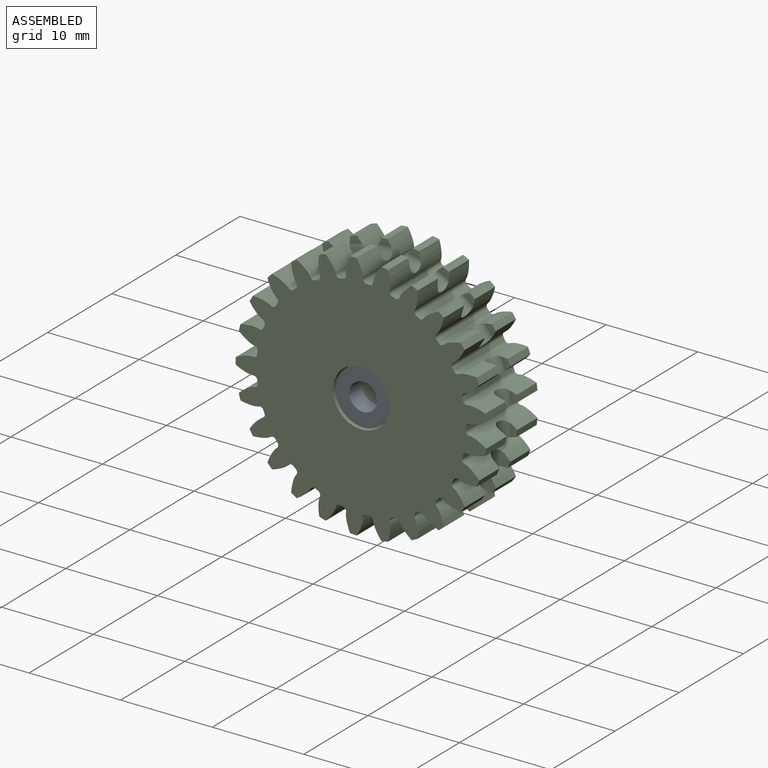
[diagram: assembled view]
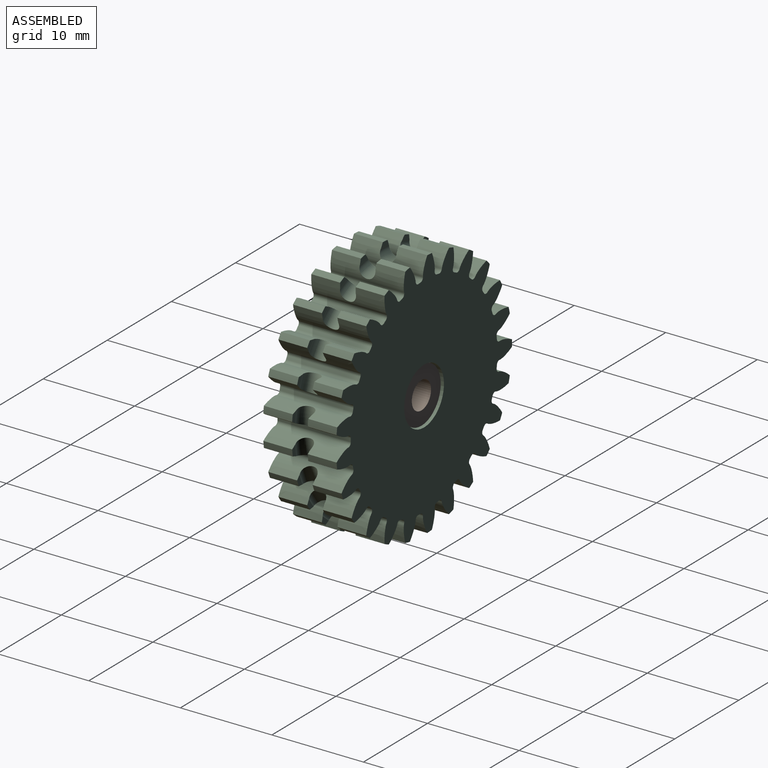
[diagram: assembled view, second angle]
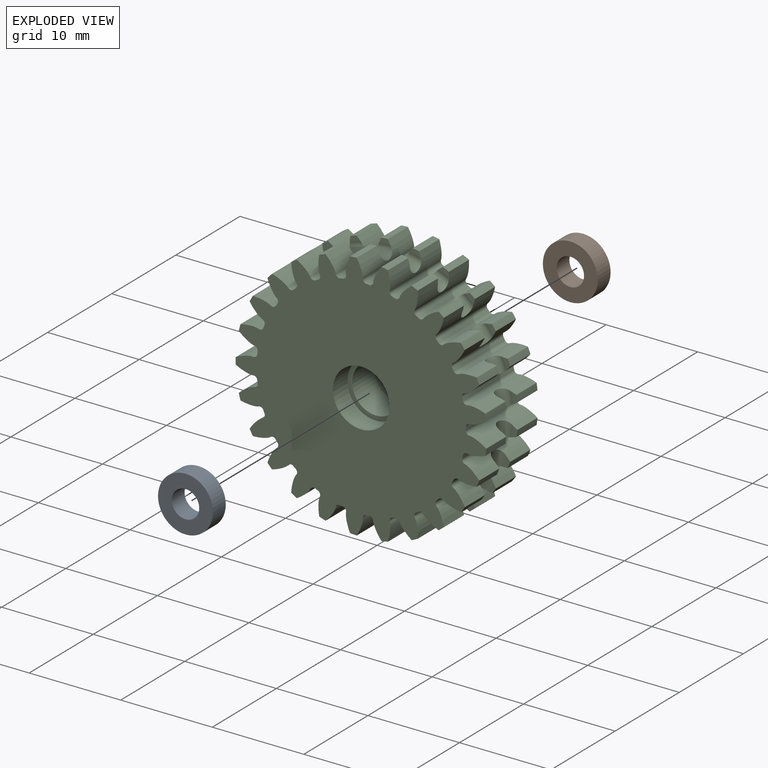
[diagram: exploded view]
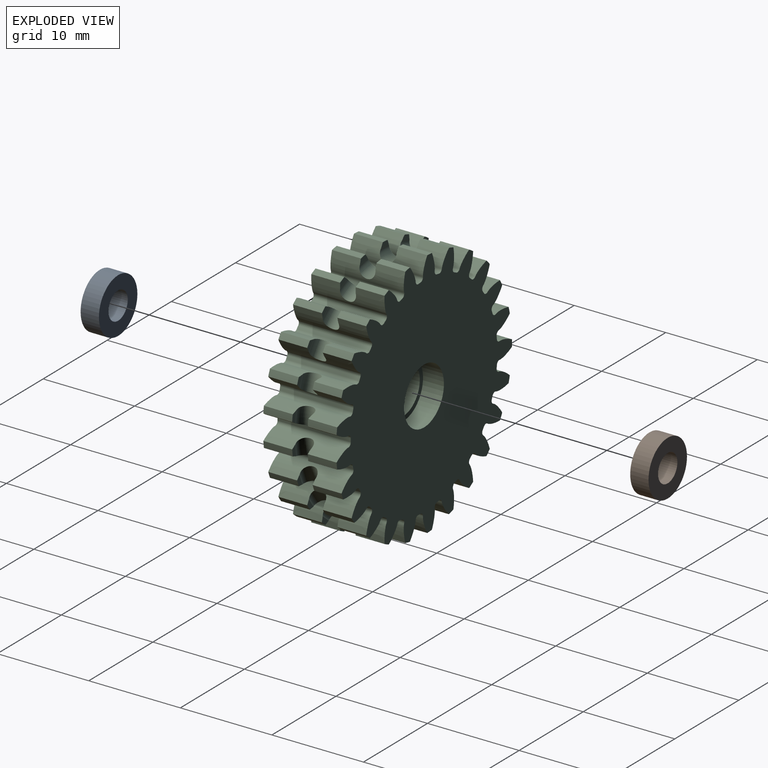
[diagram: exploded view, second angle]
ASSEMBLY  parts=3 mates=2
PART A: 4 faces, bbox 6x2x6 mm
  f0: cylinder r=1.5mm len=3mm, axis (0,1,0), area 18.8mm2, adj f2,f3
  f1: cylinder r=3mm len=6mm, axis (0,1,0), area 37.7mm2, adj f2,f3
  f2: plane 6x6mm, normal (0,-1,0), area 21.2mm2, adj f0,f1
  f3: plane 6x6mm, normal (0,1,0), area 21.2mm2, adj f0,f1
PART B: same geometry as A
PART C: 257 faces, bbox 27.4x8x27.4 mm
  f0: cylinder r=2.6mm len=5.2mm, axis (0,1,0), area 56mm2, adj f254,f256
  f1: cylinder r=13.72mm len=3.15mm, axis (0,1,0), area 2.3mm2, adj f95,f100,f101,f180
  f2: cylinder r=13.72mm len=3.15mm, axis (0,1,0), area 2.3mm2, adj f95,f100,f102,f178
  f3: cylinder r=13.72mm len=3.15mm, axis (0,1,0), area 2.3mm2, adj f98,f99,f101,f183
  f4: cylinder r=13.72mm len=3.15mm, axis (0,1,0), area 2.3mm2, adj f98,f99,f102,f181
  f5: cylinder r=13.72mm len=3.15mm, axis (0,1,0), area 2.3mm2, adj f93,f96,f101,f189
  f6: cylinder r=13.72mm len=3.15mm, axis (0,1,0), area 2.3mm2, adj f93,f96,f102,f187
  f7: cylinder r=13.72mm len=3.15mm, axis (0,1,0), area 2.3mm2, adj f91,f94,f101,f192
  f8: cylinder r=13.72mm len=3.15mm, axis (0,1,0), area 2.3mm2, adj f91,f94,f102,f190
  f9: cylinder r=13.72mm len=3.15mm, axis (0,1,0), area 2.3mm2, adj f89,f92,f101,f195
  f10: cylinder r=13.72mm len=3.15mm, axis (0,1,0), area 2.3mm2, adj f89,f92,f102,f193
  f11: cylinder r=13.72mm len=3.15mm, axis (0,1,0), area 2.3mm2, adj f85,f90,f101,f198
  f12: cylinder r=13.72mm len=3.15mm, axis (0,1,0), area 2.3mm2, adj f85,f90,f102,f196
  f13: cylinder r=13.72mm len=3.15mm, axis (0,1,0), area 2.3mm2, adj f83,f88,f101,f201
  f14: cylinder r=13.72mm len=3.15mm, axis (0,1,0), area 2.3mm2, adj f83,f88,f102,f199
  f15: cylinder r=13.72mm len=3.15mm, axis (0,1,0), area 2.3mm2, adj f86,f87,f101,f204
  f16: cylinder r=13.72mm len=3.15mm, axis (0,1,0), area 2.3mm2, adj f86,f87,f102,f202
  f17: cylinder r=13.72mm len=3.15mm, axis (0,1,0), area 2.3mm2, adj f81,f84,f101,f207
  f18: cylinder r=13.72mm len=3.15mm, axis (0,1,0), area 2.3mm2, adj f81,f84,f102,f205
  f19: cylinder r=13.72mm len=3.15mm, axis (0,1,0), area 2.3mm2, adj f79,f82,f101,f210
  f20: cylinder r=13.72mm len=3.15mm, axis (0,1,0), area 2.3mm2, adj f79,f82,f102,f208
  f21: cylinder r=13.72mm len=3.15mm, axis (0,1,0), area 2.3mm2, adj f77,f80,f101,f213
  f22: cylinder r=13.72mm len=3.15mm, axis (0,1,0), area 2.3mm2, adj f77,f80,f102,f211
  f23: cylinder r=13.72mm len=3.15mm, axis (0,1,0), area 2.3mm2, adj f71,f78,f101,f216
  f24: cylinder r=13.72mm len=3.15mm, axis (0,1,0), area 2.3mm2, adj f71,f78,f102,f214
  f25: cylinder r=13.72mm len=3.15mm, axis (0,1,0), area 2.3mm2, adj f51,f76,f101,f219
  f26: cylinder r=13.72mm len=3.15mm, axis (0,1,0), area 2.3mm2, adj f51,f76,f102,f217
  f27: cylinder r=13.72mm len=3.15mm, axis (0,1,0), area 2.3mm2, adj f74,f75,f101,f222
  f28: cylinder r=13.72mm len=3.15mm, axis (0,1,0), area 2.3mm2, adj f74,f75,f102,f220
  f29: cylinder r=13.72mm len=3.15mm, axis (0,1,0), area 2.3mm2, adj f69,f72,f101,f228
  f30: cylinder r=13.72mm len=3.15mm, axis (0,1,0), area 2.3mm2, adj f69,f72,f102,f226
  f31: cylinder r=13.72mm len=3.15mm, axis (0,1,0), area 2.3mm2, adj f70,f73,f101,f225
  f32: cylinder r=13.72mm len=3.15mm, axis (0,1,0), area 2.3mm2, adj f70,f73,f102,f223
  f33: cylinder r=13.72mm len=3.15mm, axis (0,1,0), area 2.3mm2, adj f68,f97,f101,f186
  f34: cylinder r=13.72mm len=3.15mm, axis (0,1,0), area 2.3mm2, adj f68,f97,f102,f184
  f35: cylinder r=13.72mm len=3.15mm, axis (0,1,0), area 2.3mm2, adj f66,f67,f101,f231
  f36: cylinder r=13.72mm len=3.15mm, axis (0,1,0), area 2.3mm2, adj f66,f67,f102,f229
  f37: cylinder r=13.72mm len=3.15mm, axis (0,1,0), area 2.3mm2, adj f64,f65,f101,f234
  f38: cylinder r=13.72mm len=3.15mm, axis (0,1,0), area 2.3mm2, adj f64,f65,f102,f232
  f39: cylinder r=13.72mm len=3.15mm, axis (0,1,0), area 2.3mm2, adj f62,f63,f101,f237
  f40: cylinder r=13.72mm len=3.15mm, axis (0,1,0), area 2.3mm2, adj f62,f63,f102,f235
  f41: cylinder r=13.72mm len=3.15mm, axis (0,1,0), area 2.3mm2, adj f57,f60,f101,f243
  f42: cylinder r=13.72mm len=3.15mm, axis (0,1,0), area 2.3mm2, adj f57,f60,f102,f241
  f43: cylinder r=13.72mm len=3.15mm, axis (0,1,0), area 2.3mm2, adj f53,f58,f101,f249
  f44: cylinder r=13.72mm len=3.15mm, axis (0,1,0), area 2.3mm2, adj f53,f58,f102,f247
  f45: cylinder r=13.72mm len=3.15mm, axis (0,1,0), area 2.3mm2, adj f56,f61,f101,f240
  f46: cylinder r=13.72mm len=3.15mm, axis (0,1,0), area 2.3mm2, adj f56,f61,f102,f238
  f47: cylinder r=13.72mm len=3.15mm, axis (0,1,0), area 2.3mm2, adj f54,f55,f101,f250
  f48: cylinder r=13.72mm len=3.15mm, axis (0,1,0), area 2.3mm2, adj f54,f55,f102,f252
  f49: cylinder r=13.72mm len=3.15mm, axis (0,1,0), area 2.3mm2, adj f52,f59,f101,f246
  f50: cylinder r=13.72mm len=3.15mm, axis (0,1,0), area 2.3mm2, adj f52,f59,f102,f244
  f51: extruded ~8x1.85mm, area 13.7mm2, adj f25,f26,f101,f102,f104,f217,f218,f219
  f52: extruded ~8x1.85mm, area 13.7mm2, adj f49,f50,f101,f102,f105,f244,f245,f246
  f53: extruded ~8x1.89mm, area 13.7mm2, adj f43,f44,f101,f102,f107,f247,f248,f249
  f54: extruded ~8x1.85mm, area 13.7mm2, adj f47,f48,f101,f102,f108,f250,f251,f252
  f55: extruded ~8x1.66mm, area 13.7mm2, adj f47,f48,f101,f102,f110,f250,f251,f252
  f56: extruded ~8x1.99mm, area 13.7mm2, adj f45,f46,f101,f102,f111,f238,f239,f240
  f57: extruded ~8x2.01mm, area 13.7mm2, adj f41,f42,f101,f102,f113,f241,f242,f243
  f58: extruded ~8x1.59mm, area 13.7mm2, adj f43,f44,f101,f102,f114,f247,f248,f249
  f59: extruded ~8x1.99mm, area 13.7mm2, adj f49,f50,f101,f102,f116,f244,f245,f246
  f60: extruded ~8x1.6mm, area 13.7mm2, adj f41,f42,f101,f102,f117,f241,f242,f243
  f61: extruded ~8x1.52mm, area 13.7mm2, adj f45,f46,f101,f102,f119,f238,f239,f240
  f62: extruded ~8x2.01mm, area 13.7mm2, adj f39,f40,f101,f102,f120,f235,f236,f237
  f63: extruded ~8x1.8mm, area 13.7mm2, adj f39,f40,f101,f102,f122,f235,f236,f237
  f64: extruded ~8x1.9mm, area 13.7mm2, adj f37,f38,f101,f102,f123,f232,f233,f234
  f65: extruded ~8x1.97mm, area 13.7mm2, adj f37,f38,f101,f102,f125,f232,f233,f234
  f66: extruded ~8x1.67mm, area 13.7mm2, adj f35,f36,f101,f102,f126,f229,f230,f231
  f67: extruded ~8x2.02mm, area 13.7mm2, adj f35,f36,f101,f102,f128,f229,f230,f231
  f68: extruded ~8x1.51mm, area 13.7mm2, adj f33,f34,f101,f102,f129,f184,f185,f186
  f69: extruded ~8x1.85mm, area 13.7mm2, adj f29,f30,f101,f102,f131,f226,f227,f228
  f70: extruded ~8x1.89mm, area 13.7mm2, adj f31,f32,f101,f102,f132,f223,f224,f225
  f71: extruded ~8x1.99mm, area 13.7mm2, adj f23,f24,f101,f102,f134,f214,f215,f216
  f72: extruded ~8x1.66mm, area 13.7mm2, adj f29,f30,f101,f102,f135,f226,f227,f228
  f73: extruded ~8x1.59mm, area 13.7mm2, adj f31,f32,f101,f102,f137,f223,f224,f225
  f74: extruded ~8x2.01mm, area 13.7mm2, adj f27,f28,f101,f102,f138,f220,f221,f222
  f75: extruded ~8x1.6mm, area 13.7mm2, adj f27,f28,f101,f102,f140,f220,f221,f222
  f76: extruded ~8x1.99mm, area 13.7mm2, adj f25,f26,f101,f102,f141,f217,f218,f219
  f77: extruded ~8x2.01mm, area 13.7mm2, adj f21,f22,f101,f102,f143,f211,f212,f213
  f78: extruded ~8x1.52mm, area 13.7mm2, adj f23,f24,f101,f102,f144,f214,f215,f216
  f79: extruded ~8x1.9mm, area 13.7mm2, adj f19,f20,f101,f102,f146,f208,f209,f210
  f80: extruded ~8x1.8mm, area 13.7mm2, adj f21,f22,f101,f102,f147,f211,f212,f213
  f81: extruded ~8x1.67mm, area 13.7mm2, adj f17,f18,f101,f102,f149,f205,f206,f207
  f82: extruded ~8x1.97mm, area 13.7mm2, adj f19,f20,f101,f102,f150,f208,f209,f210
  f83: extruded ~8x1.51mm, area 13.7mm2, adj f13,f14,f101,f102,f152,f199,f200,f201
  f84: extruded ~8x2.02mm, area 13.7mm2, adj f17,f18,f101,f102,f153,f205,f206,f207
  f85: extruded ~8x1.97mm, area 13.7mm2, adj f11,f12,f101,f102,f155,f196,f197,f198
  f86: extruded ~8x1.73mm, area 13.7mm2, adj f15,f16,f101,f102,f156,f202,f203,f204
  f87: extruded ~8x1.79mm, area 13.7mm2, adj f15,f16,f101,f102,f158,f202,f203,f204
  f88: extruded ~8x1.93mm, area 13.7mm2, adj f13,f14,f101,f102,f159,f199,f200,f201
  f89: extruded ~8x2.02mm, area 13.7mm2, adj f9,f10,f101,f102,f161,f193,f194,f195
  f90: extruded ~8x1.43mm, area 13.7mm2, adj f11,f12,f101,f102,f162,f196,f197,f198
  f91: extruded ~8x1.94mm, area 13.7mm2, adj f7,f8,f101,f102,f164,f190,f191,f192
  f92: extruded ~8x1.74mm, area 13.7mm2, adj f9,f10,f101,f102,f165,f193,f194,f195
  f93: extruded ~8x1.74mm, area 13.7mm2, adj f5,f6,f101,f102,f167,f187,f188,f189
  f94: extruded ~8x1.94mm, area 13.7mm2, adj f7,f8,f101,f102,f168,f190,f191,f192
  f95: extruded ~8x1.43mm, area 13.7mm2, adj f1,f2,f101,f102,f170,f178,f179,f180
  f96: extruded ~8x2.02mm, area 13.7mm2, adj f5,f6,f101,f102,f171,f187,f188,f189
  f97: extruded ~8x1.93mm, area 13.7mm2, adj f33,f34,f101,f102,f173,f184,f185,f186
  f98: extruded ~8x1.79mm, area 13.7mm2, adj f3,f4,f101,f102,f174,f181,f182,f183
  f99: extruded ~8x1.73mm, area 13.7mm2, adj f3,f4,f101,f102,f176,f181,f182,f183
  f100: extruded ~8x1.97mm, area 13.7mm2, adj f1,f2,f101,f102,f177,f178,f179,f180
  f101: plane 27.42x27.37mm, normal (0,-1,0), area 469mm2, adj f1,f3,f5,f7,f9,f11,f13,f15
  f102: plane 27.42x27.37mm, normal (0,1,0), area 469mm2, adj f2,f4,f6,f8,f10,f12,f14,f16
  f103: cylinder r=11.43mm len=8mm, axis (0,1,0), area 2.8mm2, adj f101,f102,f104,f105
  f104: cylinder r=0.38mm len=8mm, axis (0,1,0), area 4.7mm2, adj f51,f101,f102,f103
  f105: cylinder r=0.38mm len=8mm, axis (0,1,0), area 4.7mm2, adj f52,f101,f102,f103
  f106: cylinder r=11.43mm len=8mm, axis (0,1,0), area 2.8mm2, adj f101,f102,f107,f108
  f107: cylinder r=0.38mm len=8mm, axis (0,1,0), area 4.7mm2, adj f53,f101,f102,f106
  f108: cylinder r=0.38mm len=8mm, axis (0,1,0), area 4.7mm2, adj f54,f101,f102,f106
  f109: cylinder r=11.43mm len=8mm, axis (0,1,0), area 2.8mm2, adj f101,f102,f110,f111
  f110: cylinder r=0.38mm len=8mm, axis (0,1,0), area 4.7mm2, adj f55,f101,f102,f109
  f111: cylinder r=0.38mm len=8mm, axis (0,1,0), area 4.7mm2, adj f56,f101,f102,f109
  f112: cylinder r=11.43mm len=8mm, axis (0,1,0), area 2.8mm2, adj f101,f102,f113,f114
  f113: cylinder r=0.38mm len=8mm, axis (0,1,0), area 4.7mm2, adj f57,f101,f102,f112
  f114: cylinder r=0.38mm len=8mm, axis (0,1,0), area 4.7mm2, adj f58,f101,f102,f112
  f115: cylinder r=11.43mm len=8mm, axis (0,1,0), area 2.8mm2, adj f101,f102,f116,f117
  f116: cylinder r=0.38mm len=8mm, axis (0,1,0), area 4.7mm2, adj f59,f101,f102,f115
  f117: cylinder r=0.38mm len=8mm, axis (0,1,0), area 4.7mm2, adj f60,f101,f102,f115
  f118: cylinder r=11.43mm len=8mm, axis (0,1,0), area 2.8mm2, adj f101,f102,f119,f120
  f119: cylinder r=0.38mm len=8mm, axis (0,1,0), area 4.7mm2, adj f61,f101,f102,f118
  f120: cylinder r=0.38mm len=8mm, axis (0,1,0), area 4.7mm2, adj f62,f101,f102,f118
  f121: cylinder r=11.43mm len=8mm, axis (0,1,0), area 2.8mm2, adj f101,f102,f122,f123
  f122: cylinder r=0.38mm len=8mm, axis (0,1,0), area 4.7mm2, adj f63,f101,f102,f121
  f123: cylinder r=0.38mm len=8mm, axis (0,1,0), area 4.7mm2, adj f64,f101,f102,f121
  f124: cylinder r=11.43mm len=8mm, axis (0,1,0), area 2.8mm2, adj f101,f102,f125,f126
  f125: cylinder r=0.38mm len=8mm, axis (0,1,0), area 4.7mm2, adj f65,f101,f102,f124
  f126: cylinder r=0.38mm len=8mm, axis (0,1,0), area 4.7mm2, adj f66,f101,f102,f124
  f127: cylinder r=11.43mm len=8mm, axis (0,1,0), area 2.8mm2, adj f101,f102,f128,f129
  f128: cylinder r=0.38mm len=8mm, axis (0,1,0), area 4.7mm2, adj f67,f101,f102,f127
  f129: cylinder r=0.38mm len=8mm, axis (0,1,0), area 4.7mm2, adj f68,f101,f102,f127
  f130: cylinder r=11.43mm len=8mm, axis (0,1,0), area 2.8mm2, adj f101,f102,f131,f132
  f131: cylinder r=0.38mm len=8mm, axis (0,1,0), area 4.7mm2, adj f69,f101,f102,f130
  f132: cylinder r=0.38mm len=8mm, axis (0,1,0), area 4.7mm2, adj f70,f101,f102,f130
  f133: cylinder r=11.43mm len=8mm, axis (0,1,0), area 2.8mm2, adj f101,f102,f134,f135
  f134: cylinder r=0.38mm len=8mm, axis (0,1,0), area 4.7mm2, adj f71,f101,f102,f133
  f135: cylinder r=0.38mm len=8mm, axis (0,1,0), area 4.7mm2, adj f72,f101,f102,f133
  f136: cylinder r=11.43mm len=8mm, axis (0,1,0), area 2.8mm2, adj f101,f102,f137,f138
  f137: cylinder r=0.38mm len=8mm, axis (0,1,0), area 4.7mm2, adj f73,f101,f102,f136
  f138: cylinder r=0.38mm len=8mm, axis (0,1,0), area 4.7mm2, adj f74,f101,f102,f136
  f139: cylinder r=11.43mm len=8mm, axis (0,1,0), area 2.8mm2, adj f101,f102,f140,f141
  f140: cylinder r=0.38mm len=8mm, axis (0,1,0), area 4.7mm2, adj f75,f101,f102,f139
  f141: cylinder r=0.38mm len=8mm, axis (0,1,0), area 4.7mm2, adj f76,f101,f102,f139
  f142: cylinder r=11.43mm len=8mm, axis (0,1,0), area 2.8mm2, adj f101,f102,f143,f144
  f143: cylinder r=0.38mm len=8mm, axis (0,1,0), area 4.7mm2, adj f77,f101,f102,f142
  f144: cylinder r=0.38mm len=8mm, axis (0,1,0), area 4.7mm2, adj f78,f101,f102,f142
  f145: cylinder r=11.43mm len=8mm, axis (0,1,0), area 2.8mm2, adj f101,f102,f146,f147
  f146: cylinder r=0.38mm len=8mm, axis (0,1,0), area 4.7mm2, adj f79,f101,f102,f145
  f147: cylinder r=0.38mm len=8mm, axis (0,1,0), area 4.7mm2, adj f80,f101,f102,f145
  f148: cylinder r=11.43mm len=8mm, axis (0,1,0), area 2.8mm2, adj f101,f102,f149,f150
  f149: cylinder r=0.38mm len=8mm, axis (0,1,0), area 4.7mm2, adj f81,f101,f102,f148
  f150: cylinder r=0.38mm len=8mm, axis (0,1,0), area 4.7mm2, adj f82,f101,f102,f148
  f151: cylinder r=11.43mm len=8mm, axis (0,1,0), area 2.8mm2, adj f101,f102,f152,f153
  f152: cylinder r=0.38mm len=8mm, axis (0,1,0), area 4.7mm2, adj f83,f101,f102,f151
  f153: cylinder r=0.38mm len=8mm, axis (0,1,0), area 4.7mm2, adj f84,f101,f102,f151
  f154: cylinder r=11.43mm len=8mm, axis (0,1,0), area 2.8mm2, adj f101,f102,f155,f156
  f155: cylinder r=0.38mm len=8mm, axis (0,1,0), area 4.7mm2, adj f85,f101,f102,f154
  f156: cylinder r=0.38mm len=8mm, axis (0,1,0), area 4.7mm2, adj f86,f101,f102,f154
  f157: cylinder r=11.43mm len=8mm, axis (0,1,0), area 2.8mm2, adj f101,f102,f158,f159
  f158: cylinder r=0.38mm len=8mm, axis (0,1,0), area 4.7mm2, adj f87,f101,f102,f157
  f159: cylinder r=0.38mm len=8mm, axis (0,1,0), area 4.7mm2, adj f88,f101,f102,f157
  f160: cylinder r=11.43mm len=8mm, axis (0,1,0), area 2.8mm2, adj f101,f102,f161,f162
  f161: cylinder r=0.38mm len=8mm, axis (0,1,0), area 4.7mm2, adj f89,f101,f102,f160
  f162: cylinder r=0.38mm len=8mm, axis (0,1,0), area 4.7mm2, adj f90,f101,f102,f160
  f163: cylinder r=11.43mm len=8mm, axis (0,1,0), area 2.8mm2, adj f101,f102,f164,f165
  f164: cylinder r=0.38mm len=8mm, axis (0,1,0), area 4.7mm2, adj f91,f101,f102,f163
  f165: cylinder r=0.38mm len=8mm, axis (0,1,0), area 4.7mm2, adj f92,f101,f102,f163
  f166: cylinder r=11.43mm len=8mm, axis (0,1,0), area 2.8mm2, adj f101,f102,f167,f168
  f167: cylinder r=0.38mm len=8mm, axis (0,1,0), area 4.7mm2, adj f93,f101,f102,f166
  f168: cylinder r=0.38mm len=8mm, axis (0,1,0), area 4.7mm2, adj f94,f101,f102,f166
  f169: cylinder r=11.43mm len=8mm, axis (0,1,0), area 2.8mm2, adj f101,f102,f170,f171
  f170: cylinder r=0.38mm len=8mm, axis (0,1,0), area 4.7mm2, adj f95,f101,f102,f169
  f171: cylinder r=0.38mm len=8mm, axis (0,1,0), area 4.7mm2, adj f96,f101,f102,f169
  f172: cylinder r=11.43mm len=8mm, axis (0,1,0), area 2.8mm2, adj f101,f102,f173,f174
  f173: cylinder r=0.38mm len=8mm, axis (0,1,0), area 4.7mm2, adj f97,f101,f102,f172
  f174: cylinder r=0.38mm len=8mm, axis (0,1,0), area 4.7mm2, adj f98,f101,f102,f172
  f175: cylinder r=11.43mm len=8mm, axis (0,1,0), area 2.8mm2, adj f101,f102,f176,f177
  f176: cylinder r=0.38mm len=8mm, axis (0,1,0), area 4.7mm2, adj f99,f101,f102,f175
  f177: cylinder r=0.38mm len=8mm, axis (0,1,0), area 4.7mm2, adj f100,f101,f102,f175
  f178: plane 1.11x0.93mm, normal (0,-1,0), area 0.5mm2, adj f2,f95,f100,f179
  f179: torus R=13mm, axis (0,-1,0), area 5.2mm2, adj f95,f100,f178,f180
  f180: plane 1.11x0.93mm, normal (0,1,0), area 0.5mm2, adj f1,f95,f100,f179
  f181: plane 1.07x1.05mm, normal (0,-1,0), area 0.5mm2, adj f4,f98,f99,f182
  f182: torus R=13mm, axis (0,-1,0), area 5.2mm2, adj f98,f99,f181,f183
  f183: plane 1.07x1.05mm, normal (0,1,0), area 0.5mm2, adj f3,f98,f99,f182
  f184: plane 1.1x0.96mm, normal (0,-1,0), area 0.5mm2, adj f34,f68,f97,f185
  f185: torus R=13mm, axis (0,-1,0), area 5.2mm2, adj f68,f97,f184,f186
  f186: plane 1.1x0.96mm, normal (0,1,0), area 0.5mm2, adj f33,f68,f97,f185
  f187: plane 1.19x0.75mm, normal (0,-1,0), area 0.5mm2, adj f6,f93,f96,f188
  f188: torus R=13mm, axis (0,-1,0), area 5.2mm2, adj f93,f96,f187,f189
  f189: plane 1.19x0.75mm, normal (0,1,0), area 0.5mm2, adj f5,f93,f96,f188
  f190: plane 1.22x0.52mm, normal (0,-1,0), area 0.5mm2, adj f8,f91,f94,f191
  f191: torus R=13mm, axis (0,-1,0), area 5.2mm2, adj f91,f94,f190,f192
  f192: plane 1.22x0.52mm, normal (0,1,0), area 0.5mm2, adj f7,f91,f94,f191
  f193: plane 1.19x0.75mm, normal (0,-1,0), area 0.5mm2, adj f10,f89,f92,f194
  f194: torus R=13mm, axis (0,-1,0), area 5.2mm2, adj f89,f92,f193,f195
  f195: plane 1.19x0.75mm, normal (0,1,0), area 0.5mm2, adj f9,f89,f92,f194
  f196: plane 1.11x0.93mm, normal (0,-1,0), area 0.5mm2, adj f12,f85,f90,f197
  f197: torus R=13mm, axis (0,-1,0), area 5.2mm2, adj f85,f90,f196,f198
  f198: plane 1.11x0.93mm, normal (0,1,0), area 0.5mm2, adj f11,f85,f90,f197
  f199: plane 1.1x0.96mm, normal (0,-1,0), area 0.5mm2, adj f14,f83,f88,f200
  f200: torus R=13mm, axis (0,-1,0), area 5.2mm2, adj f83,f88,f199,f201
  f201: plane 1.1x0.96mm, normal (0,1,0), area 0.5mm2, adj f13,f83,f88,f200
  f202: plane 1.07x1.05mm, normal (0,-1,0), area 0.5mm2, adj f16,f86,f87,f203
  f203: torus R=13mm, axis (0,-1,0), area 5.2mm2, adj f86,f87,f202,f204
  f204: plane 1.07x1.05mm, normal (0,1,0), area 0.5mm2, adj f15,f86,f87,f203
  f205: plane 1.16x0.8mm, normal (0,-1,0), area 0.5mm2, adj f18,f81,f84,f206
  f206: torus R=13mm, axis (0,-1,0), area 5.2mm2, adj f81,f84,f205,f207
  f207: plane 1.16x0.8mm, normal (0,1,0), area 0.5mm2, adj f17,f81,f84,f206
  f208: plane 1.22x0.58mm, normal (0,-1,0), area 0.5mm2, adj f20,f79,f82,f209
  f209: torus R=13mm, axis (0,-1,0), area 5.2mm2, adj f79,f82,f208,f210
  f210: plane 1.22x0.58mm, normal (0,1,0), area 0.5mm2, adj f19,f79,f82,f209
  f211: plane 1.2x0.69mm, normal (0,-1,0), area 0.5mm2, adj f22,f77,f80,f212
  f212: torus R=13mm, axis (0,-1,0), area 5.2mm2, adj f77,f80,f211,f213
  f213: plane 1.2x0.69mm, normal (0,1,0), area 0.5mm2, adj f21,f77,f80,f212
  f214: plane 1.11x0.89mm, normal (0,-1,0), area 0.5mm2, adj f24,f71,f78,f215
  f215: torus R=13mm, axis (0,-1,0), area 5.2mm2, adj f71,f78,f214,f216
  f216: plane 1.11x0.89mm, normal (0,1,0), area 0.5mm2, adj f23,f71,f78,f215
  f217: plane 1.22x0.64mm, normal (0,-1,0), area 0.5mm2, adj f26,f51,f76,f218
  f218: torus R=13mm, axis (0,-1,0), area 5.2mm2, adj f51,f76,f217,f219
  f219: plane 1.22x0.64mm, normal (0,1,0), area 0.5mm2, adj f25,f51,f76,f218
  f220: plane 1.14x0.84mm, normal (0,-1,0), area 0.5mm2, adj f28,f74,f75,f221
  f221: torus R=13mm, axis (0,-1,0), area 5.2mm2, adj f74,f75,f220,f222
  f222: plane 1.14x0.84mm, normal (0,1,0), area 0.5mm2, adj f27,f74,f75,f221
  f223: plane 1.1x0.99mm, normal (0,-1,0), area 0.5mm2, adj f32,f70,f73,f224
  f224: torus R=13mm, axis (0,-1,0), area 5.2mm2, adj f70,f73,f223,f225
  f225: plane 1.1x0.99mm, normal (0,1,0), area 0.5mm2, adj f31,f70,f73,f224
  f226: plane 1.08x1.02mm, normal (0,-1,0), area 0.5mm2, adj f30,f69,f72,f227
  f227: torus R=13mm, axis (0,-1,0), area 5.2mm2, adj f69,f72,f226,f228
  f228: plane 1.08x1.02mm, normal (0,1,0), area 0.5mm2, adj f29,f69,f72,f227
  f229: plane 1.16x0.8mm, normal (0,-1,0), area 0.5mm2, adj f36,f66,f67,f230
  f230: torus R=13mm, axis (0,-1,0), area 5.2mm2, adj f66,f67,f229,f231
  f231: plane 1.16x0.8mm, normal (0,1,0), area 0.5mm2, adj f35,f66,f67,f230
  f232: plane 1.22x0.58mm, normal (0,-1,0), area 0.5mm2, adj f38,f64,f65,f233
  f233: torus R=13mm, axis (0,-1,0), area 5.2mm2, adj f64,f65,f232,f234
  f234: plane 1.22x0.58mm, normal (0,1,0), area 0.5mm2, adj f37,f64,f65,f233
  f235: plane 1.2x0.69mm, normal (0,-1,0), area 0.5mm2, adj f40,f62,f63,f236
  f236: torus R=13mm, axis (0,-1,0), area 5.2mm2, adj f62,f63,f235,f237
  f237: plane 1.2x0.69mm, normal (0,1,0), area 0.5mm2, adj f39,f62,f63,f236
  f238: plane 1.11x0.89mm, normal (0,-1,0), area 0.5mm2, adj f46,f56,f61,f239
  f239: torus R=13mm, axis (0,-1,0), area 5.2mm2, adj f56,f61,f238,f240
  f240: plane 1.11x0.89mm, normal (0,1,0), area 0.5mm2, adj f45,f56,f61,f239
  f241: plane 1.14x0.84mm, normal (0,-1,0), area 0.5mm2, adj f42,f57,f60,f242
  f242: torus R=13mm, axis (0,-1,0), area 5.2mm2, adj f57,f60,f241,f243
  f243: plane 1.14x0.84mm, normal (0,1,0), area 0.5mm2, adj f41,f57,f60,f242
  f244: plane 1.22x0.64mm, normal (0,-1,0), area 0.5mm2, adj f50,f52,f59,f245
  f245: torus R=13mm, axis (0,-1,0), area 5.2mm2, adj f52,f59,f244,f246
  f246: plane 1.22x0.64mm, normal (0,1,0), area 0.5mm2, adj f49,f52,f59,f245
  f247: plane 1.1x0.99mm, normal (0,-1,0), area 0.5mm2, adj f44,f53,f58,f248
  f248: torus R=13mm, axis (0,-1,0), area 5.2mm2, adj f53,f58,f247,f249
  f249: plane 1.1x0.99mm, normal (0,1,0), area 0.5mm2, adj f43,f53,f58,f248
  f250: plane 1.08x1.02mm, normal (0,1,0), area 0.5mm2, adj f47,f54,f55,f251
  f251: torus R=13mm, axis (0,-1,0), area 5.2mm2, adj f54,f55,f250,f252
  f252: plane 1.08x1.02mm, normal (0,-1,0), area 0.5mm2, adj f48,f54,f55,f251
  f253: cylinder r=3.1mm len=6.2mm, axis (0,-1,0), area 44.5mm2, adj f101,f254
  f254: plane 6.2x6.2mm, normal (0,-1,0), area 9mm2, adj f0,f253
  f255: cylinder r=3.1mm len=6.2mm, axis (0,1,0), area 44.5mm2, adj f102,f256
  f256: plane 6.2x6.2mm, normal (0,1,0), area 9mm2, adj f0,f255
PLACE A t=(-1.45,0.88,-1.08)mm
PLACE B t=(-1.45,6.31,-1.08)mm
PLACE C t=(-1.45,7.6,-1.08)mm
MATE fastened A.f1 <-> C.f253  axis (0,1,0) through (-1.45,1.88,-1.08)mm
MATE fastened C.f253 <-> B.f1  axis (0,1,0) through (-1.45,5.31,-1.08)mm
